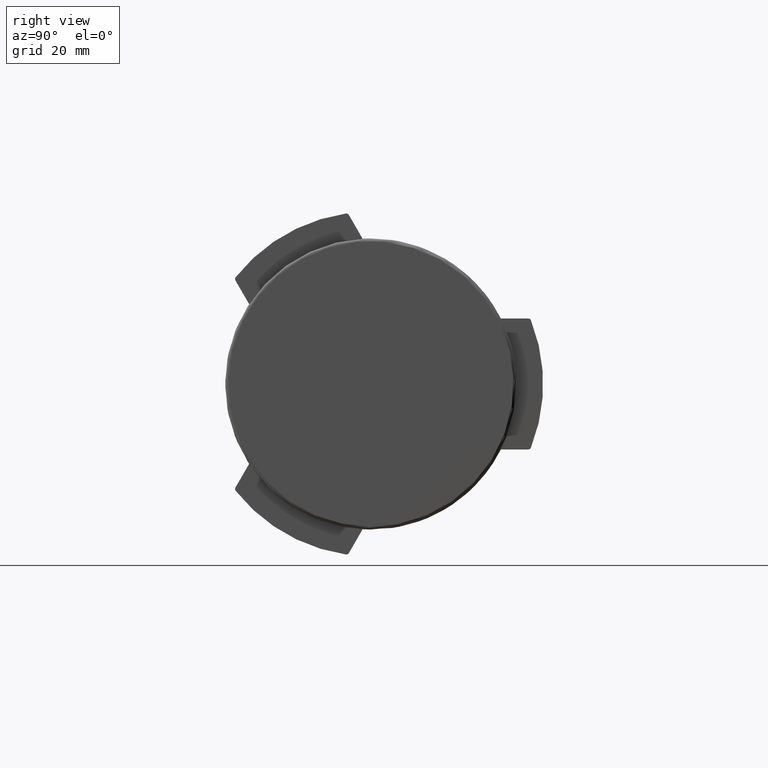
[diagram: clean part render]
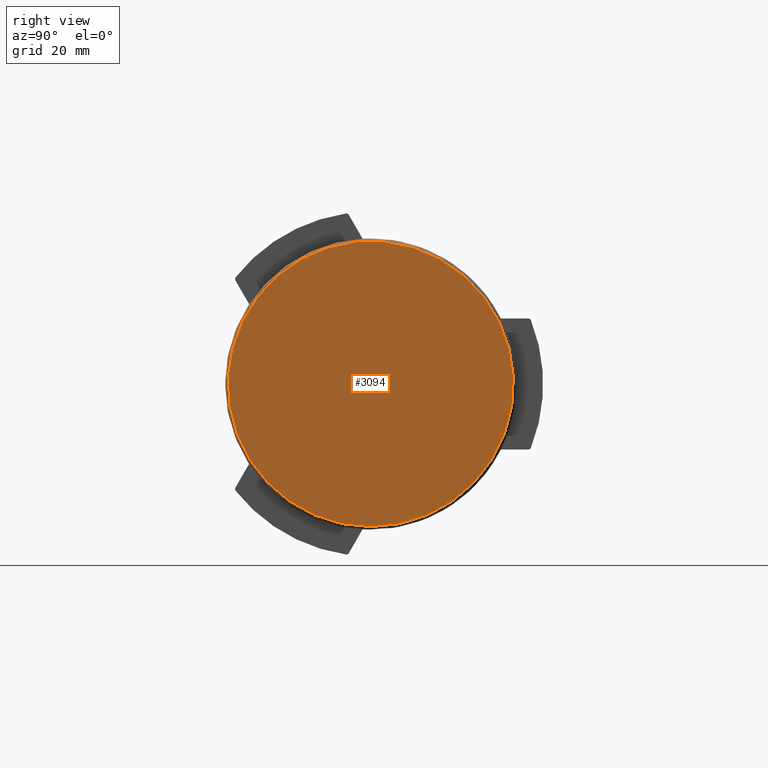
[diagram: same view with one face highlighted and labeled with its STEP entity id]
A machine part, right view. The second image highlights one B-rep face of the part: STEP entity #3094.
In plain terms, the highlighted planar face has unit normal (1, -0, 0).
Its self-contained STEP definition (entity closure, byte-faithful):
#3094 = ADVANCED_FACE ( 'NONE', ( #13810 ), #6584, .T. ) ;
#3480 = DIRECTION ( 'NONE',  ( -6.902532920683853297E-31, -1.035592380457804115E-30, 1.000000000000000000 ) ) ;
#4350 = DIRECTION ( 'NONE',  ( 1.000000000000000000, 4.057934392823880544E-31, -8.381647117973197884E-31 ) ) ;
#5004 = VERTEX_POINT ( 'NONE', #5448 ) ;
#5448 = CARTESIAN_POINT ( 'NONE',  ( 24.50000000000015277, 9.941939262418570960E-30, 9.999999999999994671 ) ) ;
#6033 = EDGE_LOOP ( 'NONE', ( #8310 ) ) ;
#6584 = PLANE ( 'NONE',  #8288 ) ;
#7059 = DIRECTION ( 'NONE',  ( 1.000000000000000000, 4.057934392823881420E-31, 0.000000000000000000 ) ) ;
#8288 = AXIS2_PLACEMENT_3D ( 'NONE', #8878, #11171, #4350 ) ;
#8310 = ORIENTED_EDGE ( 'NONE', *, *, #10562, .T. ) ;
#8878 = CARTESIAN_POINT ( 'NONE',  ( 0.000000000000000000, 0.000000000000000000, 9.999999999999994671 ) ) ;
#9284 = CARTESIAN_POINT ( 'NONE',  ( 0.000000000000000000, 0.000000000000000000, 9.999999999999994671 ) ) ;
#10562 = EDGE_CURVE ( 'NONE', #5004, #5004, #14398, .T. ) ;
#11171 = DIRECTION ( 'NONE',  ( 8.381647117973197884E-31, -1.035592380457804115E-30, 1.000000000000000000 ) ) ;
#12638 = AXIS2_PLACEMENT_3D ( 'NONE', #9284, #3480, #7059 ) ;
#13810 = FACE_OUTER_BOUND ( 'NONE', #6033, .T. ) ;
#14398 = CIRCLE ( 'NONE', #12638, 24.50000000000015277 ) ;